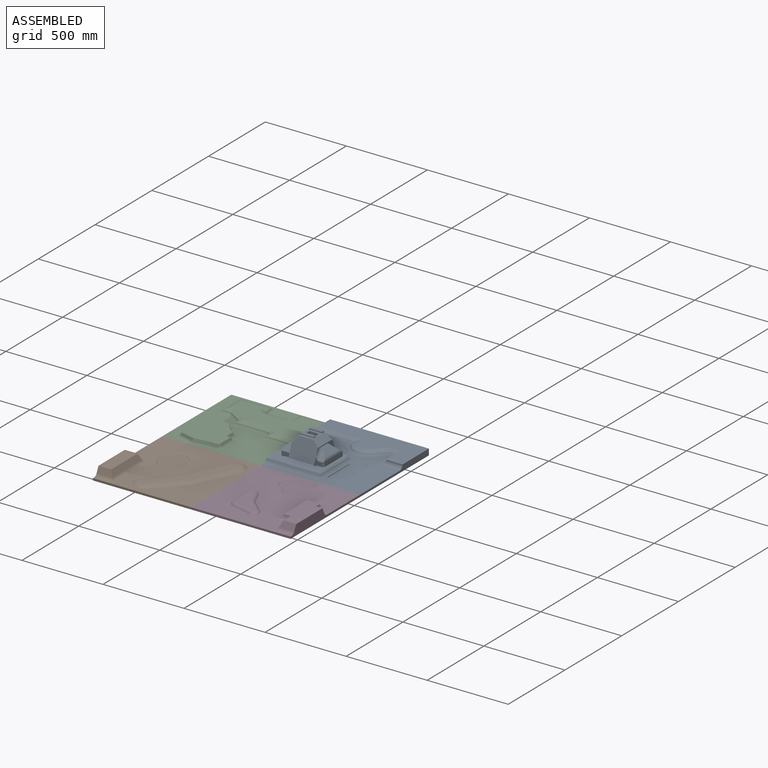
[diagram: assembled view]
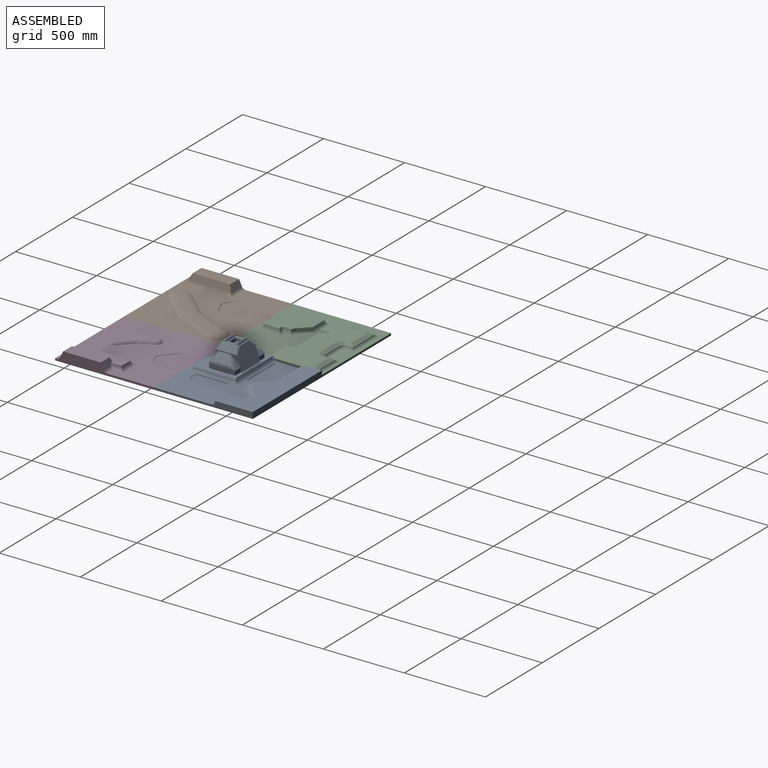
[diagram: assembled view, second angle]
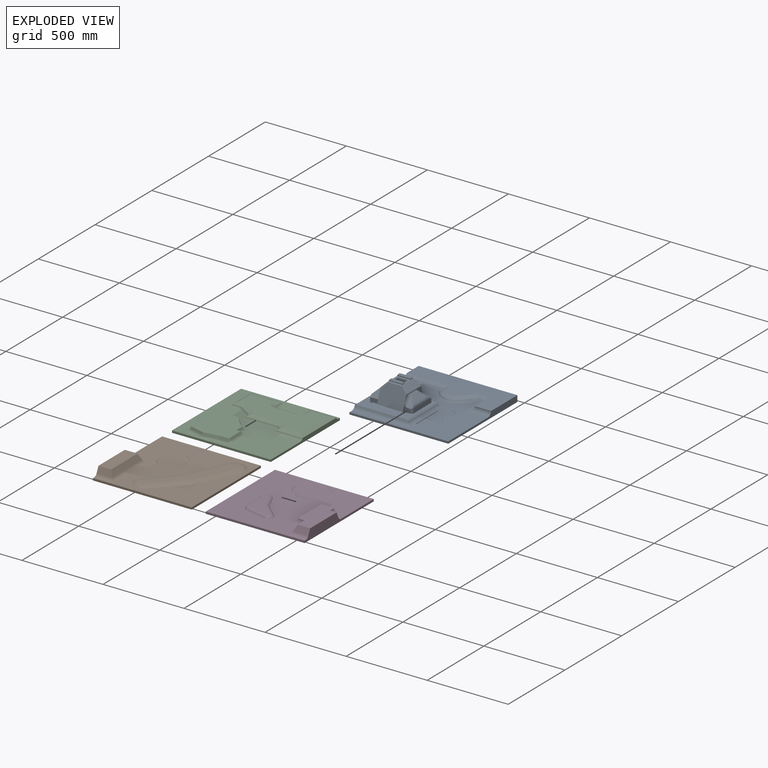
[diagram: exploded view]
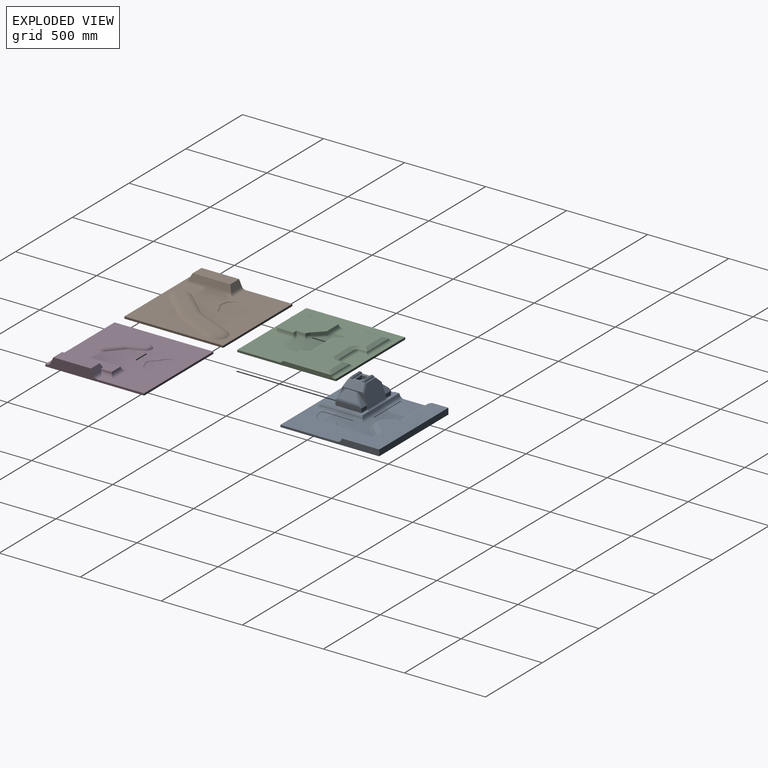
[diagram: exploded view, second angle]
ASSEMBLY  parts=4 mates=3
PART A: 110 faces, bbox 619.1x619.1x187.3 mm
  f0: plane 322.95x257.42mm, normal (0,0,1), area 23093.7mm2, adj f1,f3,f6,f7,f22,f23,f24,f25
  f1: plane 609.6x38.1mm, normal (0,1,0), area 17165.9mm2, adj f0,f2,f12,f13,f15,f16,f17,f18
  f2: plane 242.26x125.59mm, normal (0,0,1), area 14180.9mm2, adj f1,f77,f78,f85,f92,f93,f100,f101
  f3: plane 176.72x89.95mm, normal (0,-1,0), area 2235mm2, adj f0,f7,f27,f29,f31,f36,f38,f41
  f4: plane 78.48x56.16mm, normal (0,0,1), area 972.7mm2, adj f49,f54,f69,f70,f71,f72,f73,f74
  f5: plane 82.69x0.77mm, normal (0,0,1), area 63.6mm2, adj f35,f40,f41,f52
  f6: plane 55.36x45.45mm, normal (-1,0,0), area 1009.6mm2, adj f0,f9,f28,f89,f90
  f7: plane 48.84x25.59mm, normal (1,0,0), area 1234.8mm2, adj f0,f3,f24,f31,f86
  f8: plane 58.06x58.06mm, normal (0.71,0,0.71), area 2835.9mm2, adj f11,f22,f25,f26,f33,f44
  f9: plane 39.74x39.74mm, normal (-0.71,0,0.71), area 803.3mm2, adj f6,f34,f87,f88,f89,f90
  f10: plane 71.42x4.88mm, normal (0,0,1), area 211.7mm2, adj f34,f45,f86,f88
  f11: plane 65.64x7.89mm, normal (0,0,1), area 517.8mm2, adj f8,f32,f33,f44
  f12: plane 609.6x460.13mm, normal (0,0,1), area 88258.1mm2, adj f1,f13,f14,f78,f79,f80,f81,f82
  f13: plane 609.6x12.7mm, normal (-1,0,0), area 7741.9mm2, adj f1,f12,f14,f16
  f14: plane 609.6x38.1mm, normal (0,-1,0), area 13778mm2, adj f12,f13,f15,f16,f17,f82
  f15: plane 609.6x38.1mm, normal (1,0,0), area 23225.8mm2, adj f1,f14,f16,f17
  f16: plane 609.6x609.6mm, normal (0,0,-1), area 371612.2mm2, adj f1,f13,f14,f15
  f17: plane 609.6x232.19mm, normal (0,0,1), area 85842.2mm2, adj f1,f14,f15,f18,f19,f20,f21,f81
  f18: plane 276.14x29.82mm, normal (-0.42,0,0.91), area 7154.4mm2, adj f1,f17,f19,f77
  f19: cone r=63.12mm half-angle=65deg, axis (0,0,-1), area 5544.6mm2, adj f17,f18,f21,f78
  f20: plane 70.29x26.18mm, normal (-0.42,0,0.91), area 1764.9mm2, adj f17,f21,f80,f81
  f21: plane 84.4x72.99mm, normal (-0.29,-0.31,0.91), area 2402.3mm2, adj f17,f19,f20,f79
  f22: plane 167.24x41.28mm, normal (0,1,0), area 6710.9mm2, adj f0,f8,f23,f25,f32,f33,f107,f109
  f23: plane 53.24x28.58mm, normal (-1,0,0), area 1401mm2, adj f0,f22,f26,f32,f108,f109
  f24: plane 154.56x27.6mm, normal (0,-1,0), area 4257.6mm2, adj f0,f7,f86,f87,f90
  f25: plane 53.24x25.4mm, normal (1,0,0), area 1352.4mm2, adj f0,f8,f22,f26
  f26: plane 206.29x88.9mm, normal (0,1,0), area 3974.4mm2, adj f0,f8,f23,f25,f27,f29,f32,f35
  f27: plane 159.13x117.69mm, normal (-0.94,0,0.34), area 18369.7mm2, adj f3,f26,f28,f36,f39,f42,f43,f89
  f28: plane 45.85x21.77mm, normal (0,-1,0), area 394.7mm2, adj f0,f6,f27,f39
  f29: plane 158.89x117.45mm, normal (0.94,0,0.34), area 18369.7mm2, adj f3,f26,f35,f38,f40,f41
  f30: plane 82.69x0.77mm, normal (0,0,1), area 63.6mm2, adj f36,f42,f43,f47
  f31: plane 43.39x43.39mm, normal (0.71,0,0.71), area 1331.2mm2, adj f3,f7,f86
  f32: plane 58.06x58.06mm, normal (-0.71,0,0.71), area 2835.9mm2, adj f11,f22,f23,f26,f33,f44
  f33: plane 141.84x38.1mm, normal (0,0.71,0.71), area 5589.6mm2, adj f8,f11,f22,f32
  f34: plane 112.4x34.07mm, normal (0,-0.71,0.71), area 3442.3mm2, adj f9,f10,f86,f87,f88
  f35: plane 125.56x38.1mm, normal (0,0.71,0.71), area 5883mm2, adj f5,f26,f29,f40,f43,f46,f49,f53
  f36: plane 125.56x38.1mm, normal (0,-0.71,0.71), area 5883mm2, adj f3,f27,f30,f41,f42,f48,f49,f51
  f37: plane 264.19x7.26mm, normal (0,-0.71,0.71), area 2675.9mm2, adj f0,f75,f76,f84
  f38: plane 158.89x6.82mm, normal (0.57,0,0.82), area 1322.4mm2, adj f0,f3,f26,f29
  f39: plane 158.89x6.82mm, normal (-0.57,0,0.82), area 1322.4mm2, adj f0,f26,f27,f28
  f40: plane 86.44x6.82mm, normal (0.57,0,0.82), area 691.3mm2, adj f5,f29,f35,f41
  f41: plane 45.88x41.11mm, normal (0.6,-0.45,0.67), area 520.8mm2, adj f3,f5,f29,f36,f40
  f42: plane 86.44x6.82mm, normal (-0.57,0,0.82), area 691.3mm2, adj f27,f30,f36,f43
  f43: plane 45.88x41.11mm, normal (-0.6,0.45,0.67), area 520.8mm2, adj f26,f27,f30,f35,f42
  f44: plane 65.64x7.26mm, normal (0,0.71,0.71), area 599mm2, adj f8,f11,f26,f32
  f45: plane 87.71x7.26mm, normal (0,-0.71,0.71), area 722.4mm2, adj f3,f10,f86,f88
  f46: plane 17.01x5.08mm, normal (0,1,0), area 86.4mm2, adj f35,f47,f49,f66
  f47: plane 82.69x5.08mm, normal (-1,0,0), area 420.1mm2, adj f30,f46,f48,f65
  f48: plane 17.01x5.08mm, normal (0,-1,0), area 86.4mm2, adj f36,f47,f49,f67
  f49: plane 85.67x6.57mm, normal (1,0,0), area 423.2mm2, adj f4,f35,f36,f46,f48,f68,f73,f74
  f50: plane 67.45x1.77mm, normal (0,0,1), area 119.3mm2, adj f65,f66,f67,f68
  f51: plane 18.8x5.08mm, normal (0,-1,0), area 95.5mm2, adj f36,f52,f54,f62
  f52: plane 82.69x5.08mm, normal (1,0,0), area 420.1mm2, adj f5,f51,f53,f61
  f53: plane 18.8x5.08mm, normal (0,1,0), area 95.5mm2, adj f35,f52,f54,f63
  f54: plane 85.67x6.57mm, normal (-1,0,0), area 423.2mm2, adj f4,f35,f36,f51,f53,f64,f73,f74
  f55: plane 67.45x3.56mm, normal (0,0,1), area 240.4mm2, adj f61,f62,f63,f64
  f56: plane 57.99x20.32mm, normal (-1,0,0), area 1178.4mm2, adj f57,f59,f60,f70
  f57: plane 40.24x20.32mm, normal (0,-1,0), area 817.7mm2, adj f56,f58,f60,f69
  f58: plane 57.99x20.32mm, normal (1,0,0), area 1178.4mm2, adj f57,f59,f60,f71
  f59: plane 40.24x20.32mm, normal (0,1,0), area 817.7mm2, adj f56,f58,f60,f72
  f60: plane 57.99x40.24mm, normal (0,0,1), area 2333.7mm2, adj f56,f57,f58,f59
  f61: plane 82.69x7.62mm, normal (0.71,0,0.71), area 809mm2, adj f52,f55,f62,f63
  f62: plane 18.8x7.62mm, normal (0,-0.71,0.71), area 120.5mm2, adj f51,f55,f61,f64
  f63: plane 18.8x7.62mm, normal (0,0.71,0.71), area 120.5mm2, adj f53,f55,f61,f64
  f64: plane 82.69x7.62mm, normal (-0.71,0,0.71), area 809mm2, adj f54,f55,f62,f63
  f65: plane 82.69x7.62mm, normal (-0.71,0,0.71), area 809mm2, adj f47,f50,f66,f67
  f66: plane 17.01x7.62mm, normal (0,0.71,0.71), area 101.2mm2, adj f46,f50,f65,f68
  f67: plane 17.01x7.62mm, normal (0,-0.71,0.71), area 101.2mm2, adj f48,f50,f65,f68
  f68: plane 82.69x7.62mm, normal (0.71,0,0.71), area 809mm2, adj f49,f50,f66,f67
  f69: plane 50.4x5.08mm, normal (0,-0.71,0.71), area 325.6mm2, adj f4,f57,f70,f71
  f70: plane 68.15x5.08mm, normal (-0.71,0,0.71), area 453.1mm2, adj f4,f56,f69,f72
  f71: plane 68.15x5.08mm, normal (0.71,0,0.71), area 453.1mm2, adj f4,f58,f69,f72
  f72: plane 50.4x5.08mm, normal (0,0.71,0.71), area 325.6mm2, adj f4,f59,f70,f71
  f73: plane 56.16x3.59mm, normal (0,0.38,0.92), area 218.4mm2, adj f4,f35,f49,f54
  f74: plane 56.16x3.59mm, normal (0,-0.38,0.92), area 218.4mm2, adj f4,f36,f49,f54
  f75: plane 331.54x10.76mm, normal (-0.91,0,0.42), area 3884.3mm2, adj f0,f1,f37,f83,f84
  f76: plane 331.54x10.76mm, normal (0.91,0,0.42), area 3884.3mm2, adj f0,f1,f37,f84,f85
  f77: cylinder r=25.4mm len=240.99mm, axis (0,-1,0), area 6367.4mm2, adj f1,f2,f18,f78
  f78: torus R=110.99mm, axis (0,0,1), area 6213.6mm2, adj f2,f12,f19,f77,f79,f99
  f79: cylinder r=25.4mm len=74.17mm, axis (0.74,-0.68,0), area 2069.2mm2, adj f12,f21,f78,f80
  f80: cylinder r=25.4mm len=55.42mm, axis (0,-1,0), area 1082.2mm2, adj f12,f20,f79,f81
  f81: cylinder r=25.4mm len=155.99mm, axis (-1,0,0), area 4550.3mm2, adj f12,f17,f20,f80,f82
  f82: cylinder r=25.4mm len=127mm, axis (0,-1,0), area 4560.4mm2, adj f12,f14,f17,f81
  f83: cylinder r=25.4mm len=354.54mm, axis (0,-1,0), area 9884.6mm2, adj f1,f12,f75,f84
  f84: cylinder r=25.4mm len=313.47mm, axis (1,0,0), area 9278.1mm2, adj f12,f37,f75,f76,f83,f85,f95
  f85: cylinder r=25.4mm len=354.54mm, axis (0,-1,0), area 9884.6mm2, adj f1,f2,f12,f76,f84,f91
  f86: cylinder r=25.4mm len=75.24mm, axis (-0.58,0.58,0.58), area 1937.3mm2, adj f3,f7,f10,f24,f31,f34,f45,f87
  f87: cylinder r=25.4mm len=155.47mm, axis (1,0,0), area 2661.2mm2, adj f9,f24,f34,f86,f90
  f88: cylinder r=25.4mm len=38.56mm, axis (0.71,0,0.71), area 939.3mm2, adj f3,f9,f10,f34,f45,f89
  f89: bspline ~50.28x33.63mm, area 998mm2, adj f6,f9,f27,f88
  f90: cylinder r=12.7mm len=33.76mm, axis (0,0,-1), area 594.9mm2, adj f0,f6,f9,f24,f87
  f91: plane 240.96x3.78mm, normal (1,0,0), area 757.5mm2, adj f85,f92,f94,f98,f103
  f92: plane 14.03x11.87mm, normal (-0.64,-0.77,0), area 34.6mm2, adj f2,f91,f93,f103
  f93: plane 35.49x31.76mm, normal (-0.67,-0.75,0), area 43.1mm2, adj f2,f92,f103
  f94: plane 238.64x84.84mm, normal (0,0,1), area 15921mm2, adj f91,f98,f99,f100,f101,f102,f103
  f95: plane 191.6x3.53mm, normal (0,-1,0), area 598.7mm2, adj f84,f97,f104,f105
  f96: cylinder r=68.52mm len=17.87mm, axis (0,0,1), area 38.7mm2, adj f12,f97,f104,f106
  f97: plane 228.6x102.25mm, normal (0,0,1), area 18997.4mm2, adj f95,f96,f104,f105,f106
  f98: torus R=55.54mm, axis (0,0,-1), area 370.3mm2, adj f12,f91,f94,f99
  f99: bspline ~25.5x25.4mm, area 169.9mm2, adj f78,f94,f98,f100
  f100: torus R=55.54mm, axis (0,0,-1), area 202.9mm2, adj f2,f94,f99,f101
  f101: cylinder r=5.08mm len=75.07mm, axis (0,1,0), area 450.1mm2, adj f2,f94,f100,f102
  f102: torus R=38.69mm, axis (0,0,-1), area 336.8mm2, adj f2,f94,f101,f103
  f103: cylinder r=5.08mm len=69.77mm, axis (-0.73,0.68,0), area 450.6mm2, adj f2,f91,f92,f93,f94,f102
  f104: torus R=73.7mm, axis (0,0,-1), area 1234.7mm2, adj f12,f95,f96,f97
  f105: torus R=63.81mm, axis (0,0,-1), area 67.2mm2, adj f12,f95,f97,f106
  f106: torus R=44.56mm, axis (0,0,-1), area 1213.9mm2, adj f12,f96,f97,f105
  f107: plane 44.02x3.18mm, normal (-1,0,0), area 139.8mm2, adj f0,f1,f22,f109
  f108: cylinder r=41.38mm len=63.39mm, axis (0,0,1), area 338.7mm2, adj f0,f1,f23,f109
  f109: plane 216.85x63.39mm, normal (0,0,1), area 10256.7mm2, adj f1,f22,f23,f107,f108
PART B: 26 faces, bbox 609.6x609.6x63.5 mm
  f0: plane 609.6x609.6mm, normal (0,0,1), area 236586.2mm2, adj f1,f2,f3,f4,f11,f12,f13,f14
  f1: plane 609.6x12.7mm, normal (-1,0,0), area 7741.9mm2, adj f0,f2,f4,f5
  f2: plane 609.6x12.7mm, normal (0,-1,0), area 7741.9mm2, adj f0,f1,f3,f5
  f3: plane 609.6x63.5mm, normal (1,0,0), area 20822.2mm2, adj f0,f2,f4,f5,f6,f7,f9,f23
  f4: plane 609.6x12.7mm, normal (0,1,0), area 7741.9mm2, adj f0,f1,f3,f5
  f5: plane 609.6x609.6mm, normal (0,0,-1), area 371612.2mm2, adj f1,f2,f3,f4
  f6: plane 232.02x77.91mm, normal (0,0,1), area 18077.3mm2, adj f3,f7,f8,f9
  f7: plane 94.76x36.13mm, normal (0,-0.91,0.42), area 3442.2mm2, adj f3,f6,f8,f24
  f8: plane 265.72x36.13mm, normal (-0.91,0,0.42), area 9922.6mm2, adj f6,f7,f9,f25
  f9: plane 94.76x36.13mm, normal (0,0.91,0.42), area 3442.2mm2, adj f3,f6,f8,f23
  f10: plane 458.95x317.88mm, normal (0,0,1), area 25332.9mm2, adj f11,f12,f13,f14,f15,f16,f17,f18
  f11: cylinder r=67.31mm len=232.53mm, axis (-0.39,-0.92,0), area 9922mm2, adj f0,f10,f12,f13
  f12: torus R=28.31mm, axis (0,0,-1), area 6916.5mm2, adj f0,f10,f11,f14
  f13: torus R=115.55mm, axis (0,0,1), area 1331mm2, adj f0,f10,f11,f15
  f14: cylinder r=67.31mm len=255.11mm, axis (0.43,0.9,0), area 11000.8mm2, adj f0,f10,f12,f16
  f15: cylinder r=67.31mm len=184.23mm, axis (-0.67,-0.74,0), area 8914.2mm2, adj f0,f10,f13,f17
  f16: torus R=11.45mm, axis (0,0,-1), area 435.7mm2, adj f0,f10,f14,f18
  f17: torus R=19.79mm, axis (0,0,-1), area 5378.6mm2, adj f0,f10,f15,f18
  f18: cylinder r=67.31mm len=192.53mm, axis (0.7,0.72,0), area 9688.3mm2, adj f0,f10,f16,f17
  f19: plane 172.38x161.96mm, normal (0,0,1), area 20423.4mm2, adj f20,f21,f22
  f20: torus R=47.98mm, axis (0,0,1), area 688mm2, adj f0,f19,f21,f22
  f21: torus R=71.92mm, axis (0,0,1), area 1397.3mm2, adj f0,f19,f20,f22
  f22: torus R=62.92mm, axis (0,0,1), area 1156.3mm2, adj f0,f19,f20,f21
  f23: cylinder r=25.4mm len=117.78mm, axis (1,0,0), area 3021.4mm2, adj f0,f3,f9,f25
  f24: cylinder r=25.4mm len=117.78mm, axis (-1,0,0), area 3021.4mm2, adj f0,f3,f7,f25
  f25: cylinder r=25.4mm len=311.76mm, axis (0,1,0), area 8238.6mm2, adj f0,f8,f23,f24
PART C: 71 faces, bbox 610.6x610.6x39.1 mm
  f0: plane 609.6x609.6mm, normal (0,0,1), area 162980.2mm2, adj f1,f2,f3,f4,f39,f40,f41,f42
  f1: plane 609.6x26.26mm, normal (0,1,0), area 11908.6mm2, adj f0,f2,f4,f5,f20,f39,f53
  f2: plane 609.6x12.7mm, normal (-1,0,0), area 7741.9mm2, adj f0,f1,f3,f5
  f3: plane 609.6x12.7mm, normal (0,-1,0), area 7741.9mm2, adj f0,f2,f4,f5
  f4: plane 609.6x12.7mm, normal (1,0,0), area 7741.9mm2, adj f0,f1,f3,f5
  f5: plane 609.6x609.6mm, normal (0,0,-1), area 371612.2mm2, adj f1,f2,f3,f4
  f6: plane 473.8x246.2mm, normal (0,0,1), area 75184.7mm2, adj f7,f8,f9,f10,f11,f12,f13,f14
  f7: plane 40.38x25.4mm, normal (0,0.42,0.91), area 775.7mm2, adj f6,f8,f9,f44
  f8: plane 192.37x25.4mm, normal (-0.42,0,0.91), area 4679.6mm2, adj f6,f7,f10,f45
  f9: cone r=25.4mm half-angle=65deg, axis (0,0,1), area 1677.3mm2, adj f6,f7,f11,f43
  f10: plane 155.65x25.4mm, normal (0,-0.42,0.91), area 3650.3mm2, adj f6,f8,f12,f46
  f11: plane 117.79x25.4mm, normal (-0.42,0,0.91), area 3301.1mm2, adj f6,f9,f13,f42
  f12: plane 46.82x25.4mm, normal (0.42,0,0.91), area 956.2mm2, adj f6,f10,f14,f47
  f13: cone r=25.4mm half-angle=65deg, axis (0,0,1), area 1677.3mm2, adj f6,f11,f15,f41
  f14: cone r=25.4mm half-angle=65deg, axis (0,0,1), area 603.3mm2, adj f6,f12,f16,f48
  f15: plane 51.03x25.4mm, normal (0,-0.42,0.91), area 1074.1mm2, adj f6,f13,f17,f40
  f16: plane 82.37x65.05mm, normal (0.36,-0.23,0.91), area 2281.9mm2, adj f6,f14,f19,f49
  f17: plane 163.63x25.4mm, normal (-0.42,0,0.91), area 3874.1mm2, adj f6,f15,f20,f39
  f18: plane 16.04x16.04mm, normal (0,-0.42,0.91), area 142mm2, adj f19,f21,f51
  f19: cone r=25.4mm half-angle=65deg, axis (0,0,1), area 1028.3mm2, adj f6,f16,f18,f21,f50
  f20: plane 297x25.4mm, normal (0,0.42,0.91), area 7611.8mm2, adj f1,f6,f17,f22
  f21: plane 195.27x26.1mm, normal (0.42,0,0.91), area 5100.3mm2, adj f6,f18,f19,f23,f52
  f22: plane 163.84x25.61mm, normal (0.42,0,0.91), area 3874.6mm2, adj f6,f20,f23,f24,f53
  f23: cone r=25.4mm half-angle=65deg, axis (0,0,1), area 1663.2mm2, adj f6,f21,f22,f24,f54
  f24: plane 20.26x20.26mm, normal (0,-0.42,0.91), area 226.5mm2, adj f22,f23,f55
  f25: plane 67.52x62.46mm, normal (-0.66,0.67,0.34), area 1526.5mm2, adj f26,f38,f61,f66,f67,f68
  f26: plane 107.67x12.03mm, normal (-0.94,0,0.34), area 1338.7mm2, adj f25,f27,f38,f61
  f27: plane 181.23x12.03mm, normal (0,-0.94,0.34), area 2280.4mm2, adj f26,f28,f38,f62
  f28: plane 33.28x30.36mm, normal (-0.67,-0.66,0.34), area 519.8mm2, adj f27,f29,f38,f63
  f29: plane 23.19x12.03mm, normal (0,-0.94,0.34), area 263.5mm2, adj f28,f30,f38,f64
  f30: plane 92.44x27.58mm, normal (0.91,-0.24,0.34), area 1192.8mm2, adj f29,f31,f38,f65
  f31: plane 103.94x21.21mm, normal (0.93,0.13,0.34), area 1840mm2, adj f30,f32,f38,f65,f69
  f32: plane 52.78x17.24mm, normal (0.94,0,0.34), area 895.3mm2, adj f31,f33,f38,f56,f70
  f33: plane 16.5x12.03mm, normal (0.31,0.89,0.34), area 189.2mm2, adj f32,f34,f38,f56
  f34: plane 96.73x12.03mm, normal (0,0.94,0.34), area 1205.5mm2, adj f33,f35,f38,f57
  f35: plane 30.83x12.03mm, normal (-0.94,0,0.34), area 338.7mm2, adj f34,f36,f38,f59
  f36: plane 57.41x12.03mm, normal (0,0.94,0.34), area 690.9mm2, adj f35,f37,f38,f60
  f37: plane 25.43x15.85mm, normal (-0.81,0.48,0.34), area 324.9mm2, adj f36,f38,f58,f68
  f38: plane 246.56x239.63mm, normal (0,0,1), area 44324.6mm2, adj f25,f26,f27,f28,f29,f30,f31,f32
  f39: cylinder r=20.32mm len=182.79mm, axis (0,-1,0), area 4298.6mm2, adj f0,f1,f17,f40
  f40: cylinder r=20.32mm len=70.19mm, axis (1,0,0), area 1480.8mm2, adj f0,f15,f39,f41
  f41: torus R=6.24mm, axis (0,0,-1), area 677.9mm2, adj f0,f13,f40,f42
  f42: cylinder r=20.32mm len=117.79mm, axis (0,-1,0), area 2947.4mm2, adj f0,f11,f41,f43
  f43: torus R=6.24mm, axis (0,0,-1), area 677.9mm2, adj f0,f9,f42,f44
  f44: cylinder r=20.32mm len=59.54mm, axis (-1,0,0), area 1214.4mm2, adj f0,f7,f43,f45
  f45: cylinder r=20.32mm len=230.7mm, axis (0,-1,0), area 5221.8mm2, adj f0,f8,f44,f46
  f46: cylinder r=20.32mm len=193.97mm, axis (1,0,0), area 4302.8mm2, adj f0,f10,f45,f47
  f47: cylinder r=20.32mm len=65.98mm, axis (0,1,0), area 1375.6mm2, adj f0,f12,f46,f48
  f48: torus R=6.24mm, axis (0,0,-1), area 243.9mm2, adj f0,f14,f47,f49
  f49: cylinder r=20.32mm len=79.03mm, axis (0.54,0.84,0), area 2037.4mm2, adj f0,f16,f48,f50
  f50: torus R=6.24mm, axis (0,0,-1), area 434mm2, adj f0,f19,f49,f51
  f51: cylinder r=20.32mm len=35.21mm, axis (1,0,0), area 605.5mm2, adj f0,f18,f50,f52
  f52: cylinder r=20.32mm len=213.74mm, axis (0,1,0), area 5072.8mm2, adj f0,f21,f51,f54
  f53: cylinder r=20.32mm len=182.79mm, axis (0,1,0), area 4298.6mm2, adj f0,f1,f22,f55
  f54: torus R=6.24mm, axis (0,0,-1), area 677.9mm2, adj f0,f23,f52,f55
  f55: cylinder r=20.32mm len=39.42mm, axis (1,0,0), area 711mm2, adj f0,f24,f53,f54
  f56: cylinder r=20.32mm len=32.59mm, axis (0.94,-0.33,0), area 542.6mm2, adj f0,f32,f33,f57,f70
  f57: cylinder r=20.32mm len=119.1mm, axis (-1,0,0), area 2644.4mm2, adj f0,f34,f56,f59
  f58: cylinder r=20.32mm len=58.84mm, axis (-0.51,-0.86,0), area 940.1mm2, adj f0,f37,f60,f67
  f59: cylinder r=20.32mm len=45.55mm, axis (0,-1,0), area 656.7mm2, adj f0,f35,f57,f60
  f60: cylinder r=20.32mm len=63.96mm, axis (-1,0,0), area 1230mm2, adj f0,f36,f58,f59
  f61: cylinder r=20.32mm len=127.25mm, axis (0,1,0), area 2879.2mm2, adj f0,f25,f26,f62,f66
  f62: cylinder r=20.32mm len=198.5mm, axis (-1,0,0), area 4557mm2, adj f0,f27,f61,f63
  f63: cylinder r=20.32mm len=48mm, axis (-0.7,0.71,0), area 1008.1mm2, adj f0,f28,f62,f64
  f64: cylinder r=20.32mm len=45.9mm, axis (-1,0,0), area 830.9mm2, adj f0,f29,f63,f65
  f65: cylinder r=20.32mm len=111.27mm, axis (-0.25,-0.97,0), area 2403.6mm2, adj f0,f30,f31,f64,f69
  f66: cylinder r=12.7mm len=63.83mm, axis (-0.71,-0.7,0), area 1121.2mm2, adj f0,f25,f61,f67
  f67: bspline ~26.47x16.29mm, area 251.9mm2, adj f25,f58,f66,f68
  f68: cylinder r=12.7mm len=12.06mm, axis (0.27,-0.21,0.94), area 39.9mm2, adj f25,f37,f38,f67
  f69: cylinder r=12.7mm len=118.52mm, axis (0.13,-0.99,0), area 1714.8mm2, adj f0,f31,f65,f70
  f70: cylinder r=12.7mm len=65.36mm, axis (0,-1,0), area 905.5mm2, adj f0,f32,f56,f69
PART D: 37 faces, bbox 609.6x609.6x63.5 mm
  f0: plane 609.6x609.6mm, normal (0,0,1), area 260229.5mm2, adj f3,f4,f5,f6,f16,f17,f18,f19
  f1: plane 89.79x36.17mm, normal (0,-0.91,0.42), area 3176.7mm2, adj f2,f3,f8,f10,f14,f34,f36
  f2: plane 260.75x36.17mm, normal (0.91,0,0.42), area 8262.5mm2, adj f1,f8,f9,f13,f14,f31,f32
  f3: plane 609.6x63.5mm, normal (-1,0,0), area 20822.2mm2, adj f0,f1,f4,f6,f7,f8,f9,f30
  f4: plane 609.6x12.7mm, normal (0,-1,0), area 7741.9mm2, adj f0,f3,f5,f7
  f5: plane 609.6x12.7mm, normal (1,0,0), area 7741.9mm2, adj f0,f4,f6,f7
  f6: plane 609.6x12.7mm, normal (0,1,0), area 7741.9mm2, adj f0,f3,f5,f7
  f7: plane 609.6x609.6mm, normal (0,0,-1), area 371612.2mm2, adj f3,f4,f5,f6
  f8: plane 232.02x77.91mm, normal (0,0,1), area 18077.3mm2, adj f1,f2,f3,f9
  f9: plane 94.76x36.13mm, normal (0,0.91,0.42), area 3442.2mm2, adj f2,f3,f8,f30
  f10: plane 68.51x6.57mm, normal (-0.97,0,0.26), area 449.8mm2, adj f1,f11,f14,f36
  f11: plane 81.43x6.57mm, normal (0,-0.97,0.26), area 542.2mm2, adj f10,f12,f14,f35
  f12: plane 206.44x6.57mm, normal (0.97,0,0.26), area 1393mm2, adj f11,f13,f14,f33
  f13: plane 61.24x6.57mm, normal (0,0.97,0.26), area 400.4mm2, adj f2,f12,f14,f32
  f14: plane 202.91x77.9mm, normal (0,0,1), area 13298.6mm2, adj f1,f2,f10,f11,f12,f13
  f15: plane 185.84x184.12mm, normal (0,0,1), area 25592mm2, adj f16,f17,f18,f19,f20
  f16: torus R=72.91mm, axis (0,0,1), area 795.5mm2, adj f0,f15,f17,f18
  f17: torus R=36.55mm, axis (0,0,1), area 338.3mm2, adj f0,f15,f16,f19
  f18: torus R=48.7mm, axis (0,0,1), area 914.9mm2, adj f0,f15,f16,f20
  f19: torus R=72.91mm, axis (0,0,1), area 214.2mm2, adj f0,f15,f17,f20
  f20: torus R=73.22mm, axis (0,0,1), area 1459.1mm2, adj f0,f15,f18,f19
  f21: plane 195.07x157.22mm, normal (0,0,1), area 12725.4mm2, adj f22,f23,f24,f25,f26,f27,f28,f29
  f22: torus R=28.17mm, axis (0,0,-1), area 1406.5mm2, adj f0,f21,f23,f24
  f23: cylinder r=25.4mm len=129.85mm, axis (0.98,-0.22,0), area 3352.1mm2, adj f0,f21,f22,f25
  f24: cylinder r=25.4mm len=119.64mm, axis (-0.04,1,0), area 3078.5mm2, adj f0,f21,f22,f26
  f25: torus R=12.61mm, axis (0,0,-1), area 1500mm2, adj f0,f21,f23,f27
  f26: torus R=14.25mm, axis (0,0,-1), area 2249.3mm2, adj f0,f21,f24,f28
  f27: cylinder r=25.4mm len=24.94mm, axis (-0.74,0.68,0), area 327.7mm2, adj f0,f21,f25,f29
  f28: cylinder r=25.4mm len=96.77mm, axis (0.41,-0.91,0), area 2492.6mm2, adj f0,f21,f26,f29
  f29: cylinder r=25.4mm len=90.34mm, axis (0.74,-0.67,0), area 2642.4mm2, adj f0,f21,f27,f28
  f30: cylinder r=25.4mm len=117.78mm, axis (1,0,0), area 3021.4mm2, adj f0,f3,f9,f31
  f31: cylinder r=25.4mm len=144.3mm, axis (0,-1,0), area 3494.6mm2, adj f0,f2,f30,f32
  f32: cylinder r=25.4mm len=82.71mm, axis (1,0,0), area 1920.7mm2, adj f0,f2,f13,f31,f33
  f33: cylinder r=25.4mm len=255.51mm, axis (0,-1,0), area 7538.8mm2, adj f0,f12,f32,f35
  f34: cylinder r=25.4mm len=68.05mm, axis (-1,0,0), area 1670.2mm2, adj f0,f1,f3,f36
  f35: cylinder r=25.4mm len=130.5mm, axis (1,0,0), area 3382.4mm2, adj f0,f11,f33,f36
  f36: cylinder r=25.4mm len=89.98mm, axis (0,1,0), area 2162.4mm2, adj f0,f1,f10,f34,f35
PLACE A rot(axis=(0,0,1),90deg) t=(-307.94,357.2,-558.82)mm
PLACE B rot(axis=(0,0,-1),180deg) t=(-917.54,-252.4,-558.82)mm
PLACE C rot(axis=(0,0,-1),90deg) t=(-917.54,357.2,-558.82)mm
PLACE D rot(axis=(0,0,-1),180deg) t=(-307.94,-252.4,-558.82)mm
MATE fastened D.f4 <-> A.f13  axis (0,1,0) through (-307.94,52.4,-552.47)mm
MATE fastened D.f5 <-> B.f1  axis (-1,0,0) through (-612.74,-252.4,-552.47)mm
MATE fastened C.f4 <-> B.f2  axis (0,-1,0) through (-917.54,52.4,-552.47)mm
